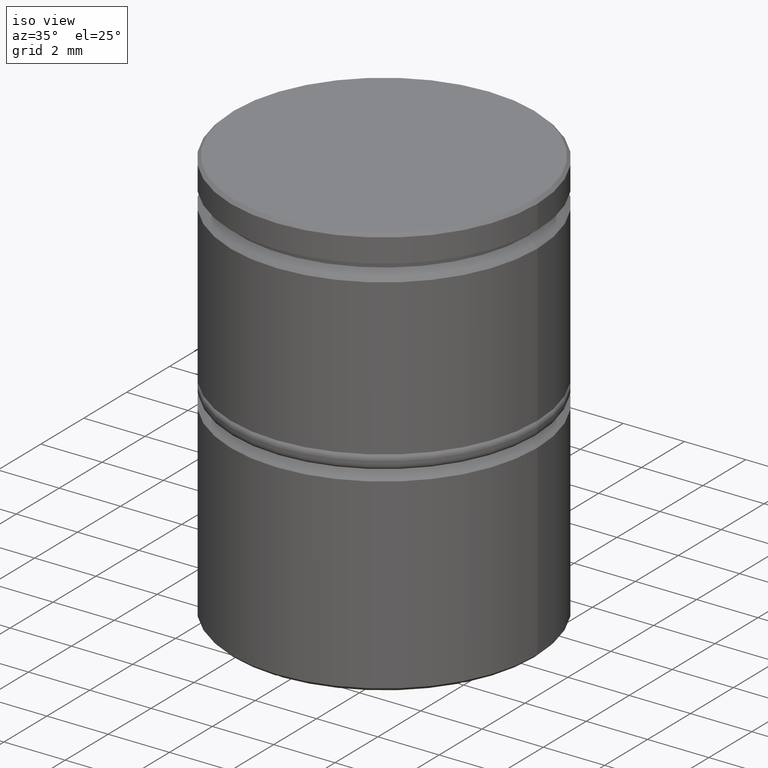
[diagram: clean part render]
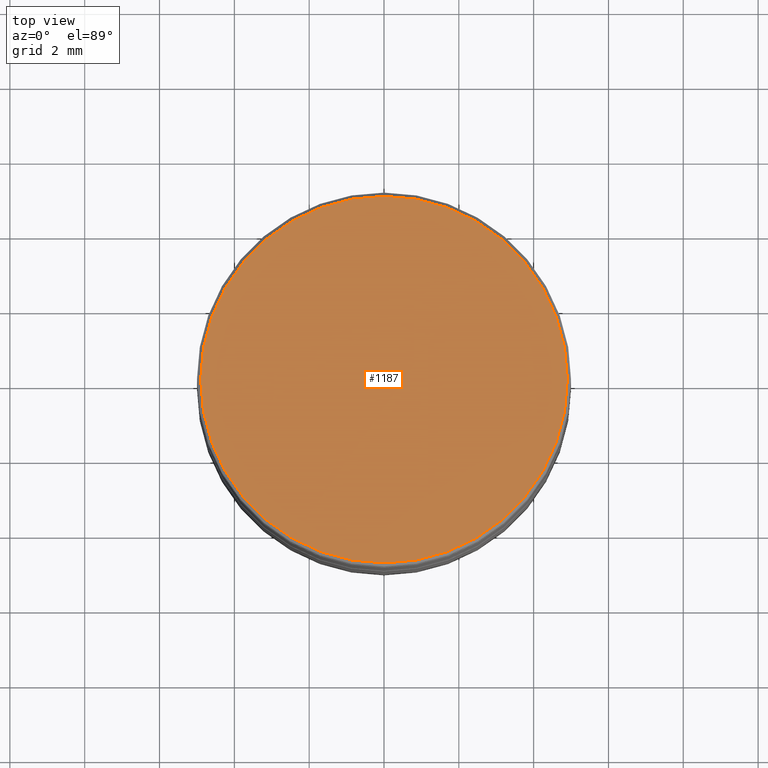
[diagram: tour spotlight — one face highlighted and labeled with its STEP entity id]
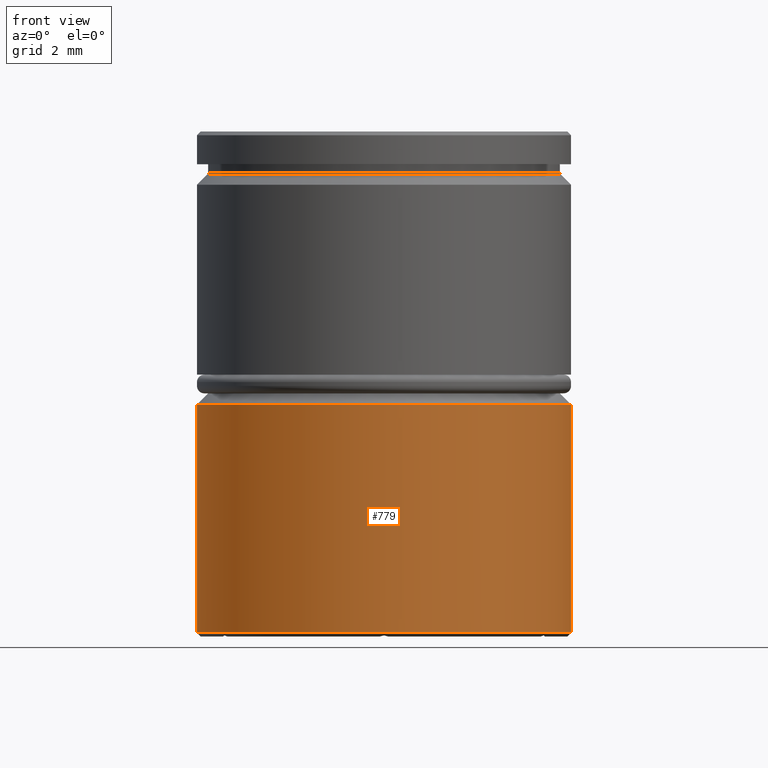
[diagram: tour spotlight — one face highlighted and labeled with its STEP entity id]
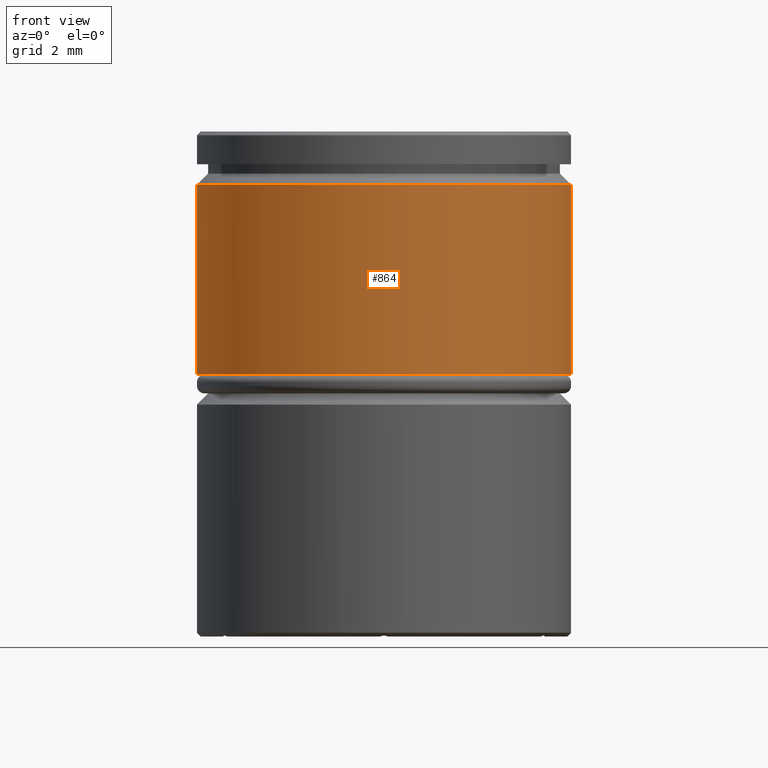
[diagram: tour spotlight — one face highlighted and labeled with its STEP entity id]
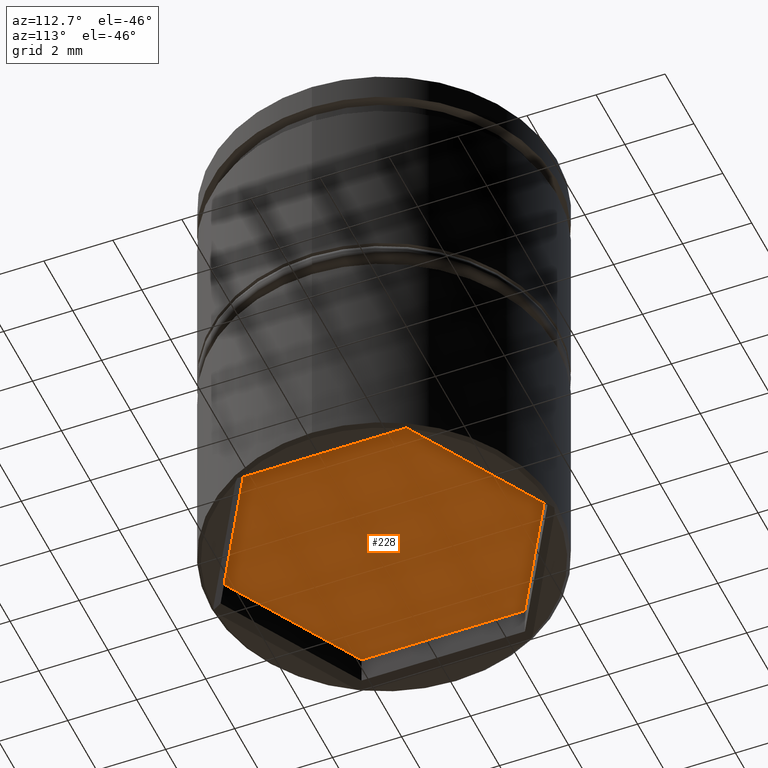
[diagram: tour spotlight — one face highlighted and labeled with its STEP entity id]
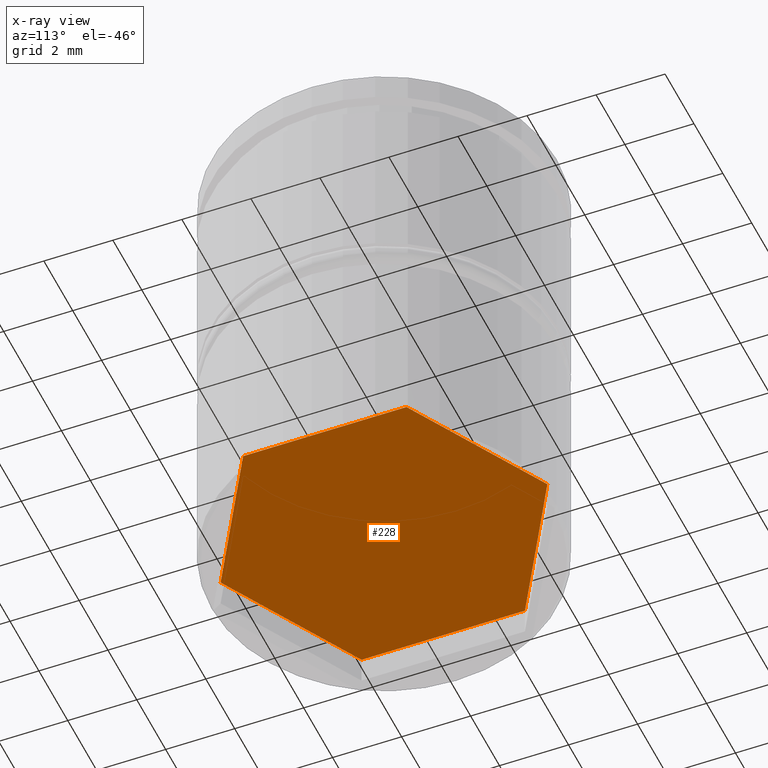
[diagram: x-ray of the same camera — body ghosted, this tour face saturated]
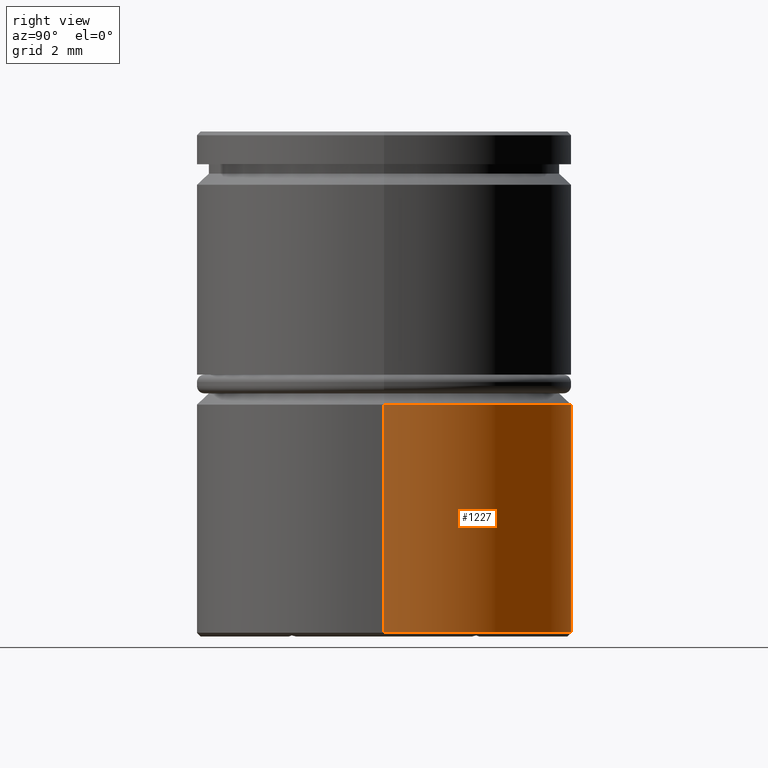
[diagram: tour spotlight — one face highlighted and labeled with its STEP entity id]
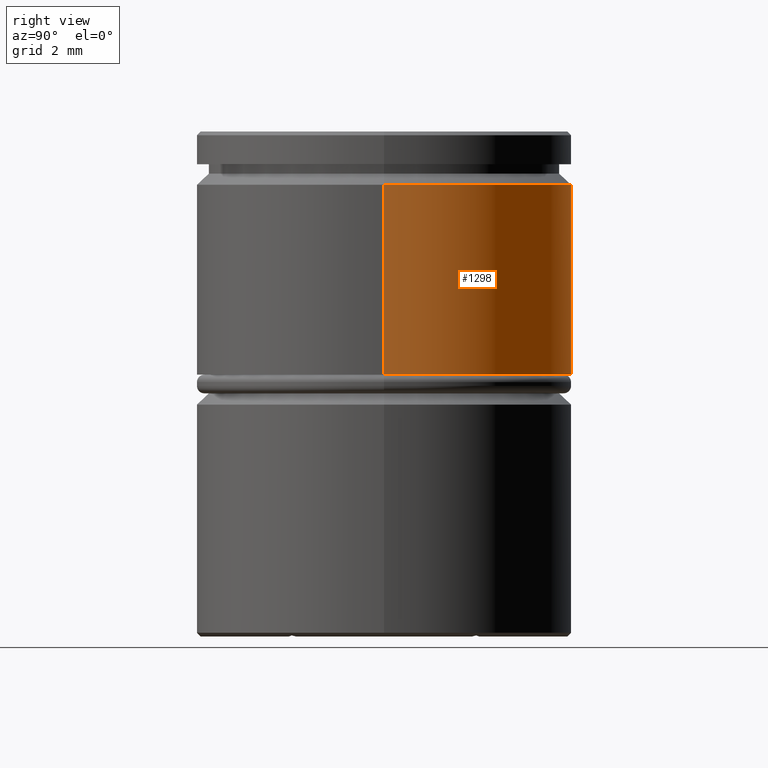
[diagram: tour spotlight — one face highlighted and labeled with its STEP entity id]
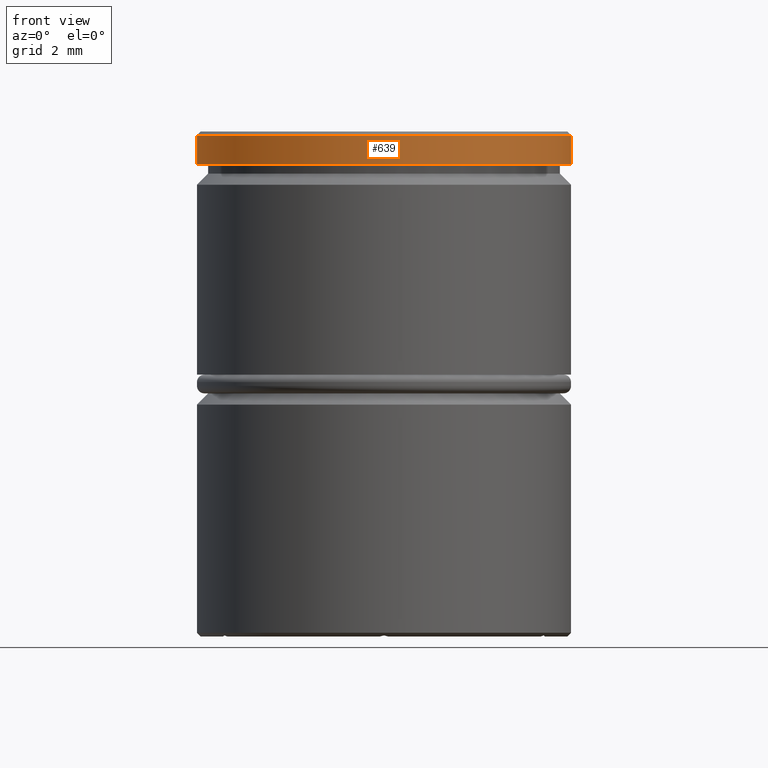
[diagram: tour spotlight — one face highlighted and labeled with its STEP entity id]
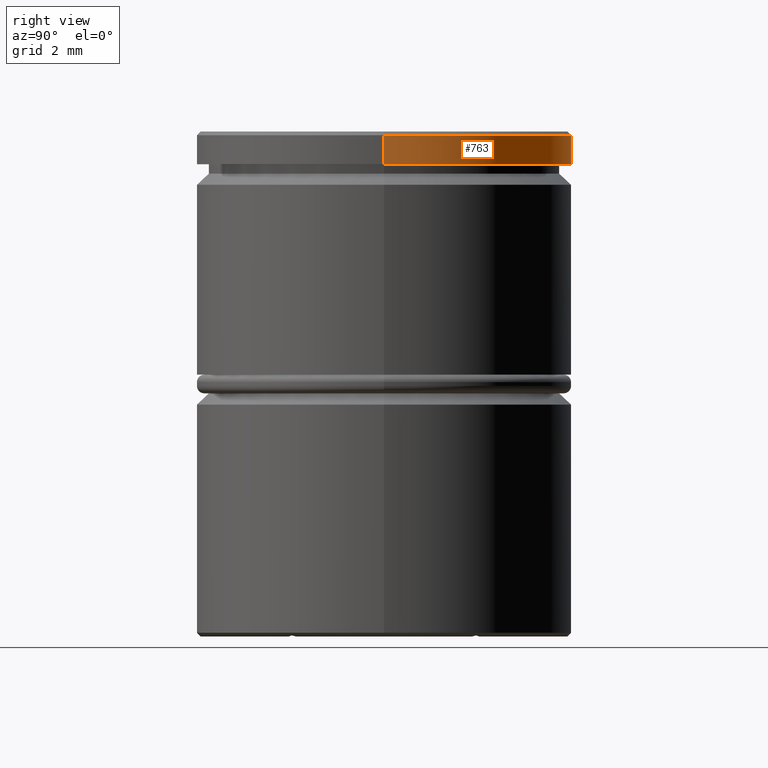
[diagram: tour spotlight — one face highlighted and labeled with its STEP entity id]
A machine part: a face-by-face anatomy tour. The part has 48 B-rep faces; the first image is the clean iso view, then the 8 largest visible faces are spotlighted one at a time (largest first), each with its STEP entity span.

Face 1 — top view, entity #1187. In plain terms, the highlighted planar face has unit normal (0, -0, 1).
Definition (entity closure, byte-faithful):
#43 = EDGE_CURVE ( 'NONE', #96, #1258, #192, .T. ) ;
#80 = DIRECTION ( 'NONE',  ( 1.000000000000000000, 0.000000000000000000, 0.000000000000000000 ) ) ;
#96 = VERTEX_POINT ( 'NONE', #229 ) ;
#174 = DIRECTION ( 'NONE',  ( -0.000000000000000000, -0.000000000000000000, 1.000000000000000000 ) ) ;
#192 = CIRCLE ( 'NONE', #1259, 4.900000000000001243 ) ;
#197 = DIRECTION ( 'NONE',  ( 0.000000000000000000, -0.000000000000000000, 1.000000000000000000 ) ) ;
#229 = CARTESIAN_POINT ( 'NONE',  ( -4.900000000000001243, 0.000000000000000000, 0.000000000000000000 ) ) ;
#256 = AXIS2_PLACEMENT_3D ( 'NONE', #1348, #1139, #1121 ) ;
#290 = CARTESIAN_POINT ( 'NONE',  ( 0.000000000000000000, 0.000000000000000000, 0.000000000000000000 ) ) ;
#294 = EDGE_CURVE ( 'NONE', #1258, #96, #855, .T. ) ;
#297 = PLANE ( 'NONE',  #555 ) ;
#455 = EDGE_LOOP ( 'NONE', ( #1013, #676 ) ) ;
#555 = AXIS2_PLACEMENT_3D ( 'NONE', #1152, #197, #627 ) ;
#627 = DIRECTION ( 'NONE',  ( 1.000000000000000000, 0.000000000000000000, 0.000000000000000000 ) ) ;
#676 = ORIENTED_EDGE ( 'NONE', *, *, #294, .T. ) ;
#833 = CARTESIAN_POINT ( 'NONE',  ( 4.900000000000001243, 6.062001655779399497E-16, 0.000000000000000000 ) ) ;
#855 = CIRCLE ( 'NONE', #256, 4.900000000000001243 ) ;
#1013 = ORIENTED_EDGE ( 'NONE', *, *, #43, .T. ) ;
#1121 = DIRECTION ( 'NONE',  ( 1.000000000000000000, 0.000000000000000000, 0.000000000000000000 ) ) ;
#1139 = DIRECTION ( 'NONE',  ( -0.000000000000000000, -0.000000000000000000, 1.000000000000000000 ) ) ;
#1152 = CARTESIAN_POINT ( 'NONE',  ( 0.000000000000000000, 0.000000000000000000, 0.000000000000000000 ) ) ;
#1187 = ADVANCED_FACE ( 'NONE', ( #1254 ), #297, .T. ) ;
#1254 = FACE_OUTER_BOUND ( 'NONE', #455, .T. ) ;
#1258 = VERTEX_POINT ( 'NONE', #833 ) ;
#1259 = AXIS2_PLACEMENT_3D ( 'NONE', #290, #174, #80 ) ;
#1348 = CARTESIAN_POINT ( 'NONE',  ( 0.000000000000000000, 0.000000000000000000, 0.000000000000000000 ) ) ;

Face 2 — front view, entity #779. In plain terms, the highlighted cylindrical surface (partial cylindrical patch) has radius 5 mm, axis along (-0, -0, 1).
Definition (entity closure, byte-faithful):
#5 = ORIENTED_EDGE ( 'NONE', *, *, #1174, .T. ) ;
#29 = CARTESIAN_POINT ( 'NONE',  ( 5.000000000000000000, 0.000000000000000000, -7.299999999999996270 ) ) ;
#108 = CARTESIAN_POINT ( 'NONE',  ( 0.000000000000000000, 0.000000000000000000, -7.299999999999996270 ) ) ;
#147 = CARTESIAN_POINT ( 'NONE',  ( 5.000000000000000000, 0.000000000000000000, -13.40000000000000213 ) ) ;
#178 = CYLINDRICAL_SURFACE ( 'NONE', #1155, 5.000000000000000000 ) ;
#260 = VECTOR ( 'NONE', #1073, 1000.000000000000000 ) ;
#325 = VECTOR ( 'NONE', #1353, 1000.000000000000000 ) ;
#341 = ORIENTED_EDGE ( 'NONE', *, *, #544, .T. ) ;
#369 = CIRCLE ( 'NONE', #1283, 5.000000000000000000 ) ;
#421 = AXIS2_PLACEMENT_3D ( 'NONE', #721, #1124, #514 ) ;
#487 = CIRCLE ( 'NONE', #421, 5.000000000000000000 ) ;
#498 = DIRECTION ( 'NONE',  ( -0.000000000000000000, -0.000000000000000000, 1.000000000000000000 ) ) ;
#514 = DIRECTION ( 'NONE',  ( -1.000000000000000000, 0.000000000000000000, 0.000000000000000000 ) ) ;
#535 = DIRECTION ( 'NONE',  ( 0.000000000000000000, 0.000000000000000000, -1.000000000000000000 ) ) ;
#544 = EDGE_CURVE ( 'NONE', #968, #705, #369, .T. ) ;
#577 = EDGE_LOOP ( 'NONE', ( #957, #5, #1300, #341 ) ) ;
#590 = CARTESIAN_POINT ( 'NONE',  ( -5.000000000000000000, 6.123233995736766282E-16, 0.000000000000000000 ) ) ;
#601 = CARTESIAN_POINT ( 'NONE',  ( -5.000000000000000000, 6.123233995736766282E-16, -7.299999999999996270 ) ) ;
#610 = CARTESIAN_POINT ( 'NONE',  ( 0.000000000000000000, 0.000000000000000000, 0.000000000000000000 ) ) ;
#705 = VERTEX_POINT ( 'NONE', #601 ) ;
#721 = CARTESIAN_POINT ( 'NONE',  ( 0.000000000000000000, 0.000000000000000000, -13.40000000000000213 ) ) ;
#752 = VERTEX_POINT ( 'NONE', #147 ) ;
#760 = LINE ( 'NONE', #1058, #260 ) ;
#779 = ADVANCED_FACE ( 'NONE', ( #1113 ), #178, .T. ) ;
#801 = EDGE_CURVE ( 'NONE', #752, #968, #760, .T. ) ;
#922 = DIRECTION ( 'NONE',  ( 1.000000000000000000, 0.000000000000000000, 0.000000000000000000 ) ) ;
#957 = ORIENTED_EDGE ( 'NONE', *, *, #1061, .F. ) ;
#958 = DIRECTION ( 'NONE',  ( 1.000000000000000000, 0.000000000000000000, 0.000000000000000000 ) ) ;
#968 = VERTEX_POINT ( 'NONE', #29 ) ;
#983 = CARTESIAN_POINT ( 'NONE',  ( -5.000000000000000000, 6.123233995736766282E-16, -13.40000000000000213 ) ) ;
#1050 = VERTEX_POINT ( 'NONE', #983 ) ;
#1058 = CARTESIAN_POINT ( 'NONE',  ( 5.000000000000000000, 0.000000000000000000, 0.000000000000000000 ) ) ;
#1061 = EDGE_CURVE ( 'NONE', #1050, #705, #1224, .T. ) ;
#1073 = DIRECTION ( 'NONE',  ( -0.000000000000000000, -0.000000000000000000, 1.000000000000000000 ) ) ;
#1113 = FACE_OUTER_BOUND ( 'NONE', #577, .T. ) ;
#1124 = DIRECTION ( 'NONE',  ( -0.000000000000000000, -0.000000000000000000, 1.000000000000000000 ) ) ;
#1155 = AXIS2_PLACEMENT_3D ( 'NONE', #610, #498, #922 ) ;
#1174 = EDGE_CURVE ( 'NONE', #1050, #752, #487, .T. ) ;
#1224 = LINE ( 'NONE', #590, #325 ) ;
#1283 = AXIS2_PLACEMENT_3D ( 'NONE', #108, #535, #958 ) ;
#1300 = ORIENTED_EDGE ( 'NONE', *, *, #801, .T. ) ;
#1353 = DIRECTION ( 'NONE',  ( -0.000000000000000000, -0.000000000000000000, 1.000000000000000000 ) ) ;

Face 3 — front view, entity #864. In plain terms, the highlighted cylindrical surface (partial cylindrical patch) has radius 5 mm, axis along (-0, -0, 1).
Definition (entity closure, byte-faithful):
#18 = FACE_OUTER_BOUND ( 'NONE', #621, .T. ) ;
#84 = AXIS2_PLACEMENT_3D ( 'NONE', #1051, #450, #967 ) ;
#138 = VERTEX_POINT ( 'NONE', #973 ) ;
#158 = CARTESIAN_POINT ( 'NONE',  ( 0.000000000000000000, 0.000000000000000000, -6.499999999999999112 ) ) ;
#171 = CARTESIAN_POINT ( 'NONE',  ( 5.000000000000000000, 0.000000000000000000, -6.499999999999999112 ) ) ;
#237 = CARTESIAN_POINT ( 'NONE',  ( -5.000000000000000000, 6.123233995736766282E-16, 0.000000000000000000 ) ) ;
#291 = CARTESIAN_POINT ( 'NONE',  ( 5.000000000000000000, 0.000000000000000000, 0.000000000000000000 ) ) ;
#298 = VERTEX_POINT ( 'NONE', #171 ) ;
#302 = CIRCLE ( 'NONE', #1060, 5.000000000000000000 ) ;
#349 = CARTESIAN_POINT ( 'NONE',  ( 0.000000000000000000, 0.000000000000000000, -1.425000000000000933 ) ) ;
#353 = EDGE_CURVE ( 'NONE', #1097, #298, #302, .T. ) ;
#363 = DIRECTION ( 'NONE',  ( -0.000000000000000000, -0.000000000000000000, 1.000000000000000000 ) ) ;
#367 = ORIENTED_EDGE ( 'NONE', *, *, #1114, .T. ) ;
#381 = DIRECTION ( 'NONE',  ( 1.000000000000000000, 0.000000000000000000, 0.000000000000000000 ) ) ;
#446 = DIRECTION ( 'NONE',  ( 1.000000000000000000, 0.000000000000000000, 0.000000000000000000 ) ) ;
#450 = DIRECTION ( 'NONE',  ( -0.000000000000000000, -0.000000000000000000, 1.000000000000000000 ) ) ;
#483 = AXIS2_PLACEMENT_3D ( 'NONE', #349, #1084, #446 ) ;
#496 = LINE ( 'NONE', #291, #532 ) ;
#532 = VECTOR ( 'NONE', #905, 1000.000000000000000 ) ;
#607 = CARTESIAN_POINT ( 'NONE',  ( -5.000000000000000000, 6.123233995736766282E-16, -1.425000000000000933 ) ) ;
#621 = EDGE_LOOP ( 'NONE', ( #894, #1302, #367, #1208 ) ) ;
#638 = EDGE_CURVE ( 'NONE', #138, #1091, #1086, .T. ) ;
#863 = CYLINDRICAL_SURFACE ( 'NONE', #84, 5.000000000000000000 ) ;
#864 = ADVANCED_FACE ( 'NONE', ( #18 ), #863, .T. ) ;
#894 = ORIENTED_EDGE ( 'NONE', *, *, #966, .F. ) ;
#905 = DIRECTION ( 'NONE',  ( -0.000000000000000000, -0.000000000000000000, 1.000000000000000000 ) ) ;
#966 = EDGE_CURVE ( 'NONE', #1097, #1091, #1101, .T. ) ;
#967 = DIRECTION ( 'NONE',  ( 1.000000000000000000, 0.000000000000000000, 0.000000000000000000 ) ) ;
#973 = CARTESIAN_POINT ( 'NONE',  ( 5.000000000000000000, 0.000000000000000000, -1.425000000000000933 ) ) ;
#1051 = CARTESIAN_POINT ( 'NONE',  ( 0.000000000000000000, 0.000000000000000000, 0.000000000000000000 ) ) ;
#1060 = AXIS2_PLACEMENT_3D ( 'NONE', #158, #363, #381 ) ;
#1084 = DIRECTION ( 'NONE',  ( 0.000000000000000000, 0.000000000000000000, -1.000000000000000000 ) ) ;
#1086 = CIRCLE ( 'NONE', #483, 5.000000000000000000 ) ;
#1091 = VERTEX_POINT ( 'NONE', #607 ) ;
#1095 = DIRECTION ( 'NONE',  ( -0.000000000000000000, -0.000000000000000000, 1.000000000000000000 ) ) ;
#1097 = VERTEX_POINT ( 'NONE', #1231 ) ;
#1101 = LINE ( 'NONE', #237, #1370 ) ;
#1114 = EDGE_CURVE ( 'NONE', #298, #138, #496, .T. ) ;
#1208 = ORIENTED_EDGE ( 'NONE', *, *, #638, .T. ) ;
#1231 = CARTESIAN_POINT ( 'NONE',  ( -5.000000000000000000, 6.123233995736766282E-16, -6.499999999999999112 ) ) ;
#1302 = ORIENTED_EDGE ( 'NONE', *, *, #353, .T. ) ;
#1370 = VECTOR ( 'NONE', #1095, 1000.000000000000000 ) ;

Face 4 — auxiliary view, entity #228. An x-ray twin of the same camera follows (body ghosted, this face saturated) — the face is partly hidden behind the body. In plain terms, the highlighted planar face has unit normal (0, 0, -1).
Definition (entity closure, byte-faithful):
#31 = AXIS2_PLACEMENT_3D ( 'NONE', #479, #901, #1115 ) ;
#53 = VERTEX_POINT ( 'NONE', #1257 ) ;
#85 = VECTOR ( 'NONE', #925, 1000.000000000000000 ) ;
#93 = DIRECTION ( 'NONE',  ( 0.000000000000000000, -1.000000000000000000, 0.000000000000000000 ) ) ;
#129 = DIRECTION ( 'NONE',  ( -0.8660254037844384856, 0.5000000000000002220, 0.000000000000000000 ) ) ;
#130 = VERTEX_POINT ( 'NONE', #838 ) ;
#180 = CARTESIAN_POINT ( 'NONE',  ( 0.000000000000000000, 4.734272207354934814, -12.50000000000000000 ) ) ;
#183 = ORIENTED_EDGE ( 'NONE', *, *, #403, .T. ) ;
#188 = CARTESIAN_POINT ( 'NONE',  ( 4.100000000000003197, -2.367136103677467407, -12.50000000000000000 ) ) ;
#190 = EDGE_CURVE ( 'NONE', #1006, #564, #234, .T. ) ;
#228 = ADVANCED_FACE ( 'NONE', ( #529 ), #802, .T. ) ;
#234 = LINE ( 'NONE', #537, #528 ) ;
#374 = CARTESIAN_POINT ( 'NONE',  ( 4.100000000000003197, 2.367136103677466963, -12.50000000000000000 ) ) ;
#393 = ORIENTED_EDGE ( 'NONE', *, *, #1363, .T. ) ;
#403 = EDGE_CURVE ( 'NONE', #53, #130, #1247, .T. ) ;
#413 = EDGE_CURVE ( 'NONE', #564, #955, #726, .T. ) ;
#479 = CARTESIAN_POINT ( 'NONE',  ( 0.000000000000000000, 0.000000000000000000, -12.50000000000000000 ) ) ;
#502 = LINE ( 'NONE', #180, #85 ) ;
#505 = DIRECTION ( 'NONE',  ( -0.8660254037844387076, -0.4999999999999999445, 0.000000000000000000 ) ) ;
#528 = VECTOR ( 'NONE', #129, 1000.000000000000227 ) ;
#529 = FACE_OUTER_BOUND ( 'NONE', #539, .T. ) ;
#537 = CARTESIAN_POINT ( 'NONE',  ( -8.646952822150503169E-16, -4.734272207354934814, -12.50000000000000000 ) ) ;
#539 = EDGE_LOOP ( 'NONE', ( #1326, #393, #183, #1183, #841, #1202 ) ) ;
#551 = VECTOR ( 'NONE', #93, 1000.000000000000000 ) ;
#564 = VERTEX_POINT ( 'NONE', #1190 ) ;
#576 = VECTOR ( 'NONE', #734, 1000.000000000000000 ) ;
#651 = CARTESIAN_POINT ( 'NONE',  ( 0.000000000000000000, 4.734272207354934814, -12.50000000000000000 ) ) ;
#669 = CARTESIAN_POINT ( 'NONE',  ( -4.100000000000003197, 2.367136103677469183, -12.50000000000000000 ) ) ;
#726 = LINE ( 'NONE', #739, #576 ) ;
#734 = DIRECTION ( 'NONE',  ( -1.832090974069704843E-16, 1.000000000000000000, 0.000000000000000000 ) ) ;
#739 = CARTESIAN_POINT ( 'NONE',  ( -4.100000000000002309, -2.367136103677466963, -12.50000000000000000 ) ) ;
#790 = DIRECTION ( 'NONE',  ( 0.8660254037844387076, 0.4999999999999997224, 0.000000000000000000 ) ) ;
#802 = PLANE ( 'NONE',  #31 ) ;
#838 = CARTESIAN_POINT ( 'NONE',  ( 4.100000000000003197, -2.367136103677467407, -12.50000000000000000 ) ) ;
#841 = ORIENTED_EDGE ( 'NONE', *, *, #190, .T. ) ;
#898 = LINE ( 'NONE', #1317, #996 ) ;
#901 = DIRECTION ( 'NONE',  ( 0.000000000000000000, 0.000000000000000000, -1.000000000000000000 ) ) ;
#925 = DIRECTION ( 'NONE',  ( 0.8660254037844385966, -0.5000000000000001110, 0.000000000000000000 ) ) ;
#955 = VERTEX_POINT ( 'NONE', #669 ) ;
#996 = VECTOR ( 'NONE', #790, 1000.000000000000114 ) ;
#1006 = VERTEX_POINT ( 'NONE', #1301 ) ;
#1019 = VECTOR ( 'NONE', #505, 1000.000000000000000 ) ;
#1052 = EDGE_CURVE ( 'NONE', #955, #1232, #898, .T. ) ;
#1115 = DIRECTION ( 'NONE',  ( -1.000000000000000000, 0.000000000000000000, -0.000000000000000000 ) ) ;
#1142 = LINE ( 'NONE', #188, #1019 ) ;
#1143 = EDGE_CURVE ( 'NONE', #130, #1006, #1142, .T. ) ;
#1183 = ORIENTED_EDGE ( 'NONE', *, *, #1143, .T. ) ;
#1190 = CARTESIAN_POINT ( 'NONE',  ( -4.100000000000002309, -2.367136103677466963, -12.50000000000000000 ) ) ;
#1202 = ORIENTED_EDGE ( 'NONE', *, *, #413, .T. ) ;
#1232 = VERTEX_POINT ( 'NONE', #651 ) ;
#1247 = LINE ( 'NONE', #374, #551 ) ;
#1257 = CARTESIAN_POINT ( 'NONE',  ( 4.100000000000003197, 2.367136103677466963, -12.50000000000000000 ) ) ;
#1301 = CARTESIAN_POINT ( 'NONE',  ( -8.646952822150503169E-16, -4.734272207354934814, -12.50000000000000000 ) ) ;
#1317 = CARTESIAN_POINT ( 'NONE',  ( -4.100000000000003197, 2.367136103677469183, -12.50000000000000000 ) ) ;
#1326 = ORIENTED_EDGE ( 'NONE', *, *, #1052, .T. ) ;
#1363 = EDGE_CURVE ( 'NONE', #1232, #53, #502, .T. ) ;

Face 5 — right view, entity #1227. In plain terms, the highlighted cylindrical surface (partial cylindrical patch) has radius 5 mm, axis along (-0, -0, 1).
Definition (entity closure, byte-faithful):
#29 = CARTESIAN_POINT ( 'NONE',  ( 5.000000000000000000, 0.000000000000000000, -7.299999999999996270 ) ) ;
#109 = CARTESIAN_POINT ( 'NONE',  ( 0.000000000000000000, 0.000000000000000000, -7.299999999999996270 ) ) ;
#132 = EDGE_CURVE ( 'NONE', #705, #968, #415, .T. ) ;
#140 = DIRECTION ( 'NONE',  ( -0.000000000000000000, -0.000000000000000000, 1.000000000000000000 ) ) ;
#147 = CARTESIAN_POINT ( 'NONE',  ( 5.000000000000000000, 0.000000000000000000, -13.40000000000000213 ) ) ;
#189 = ORIENTED_EDGE ( 'NONE', *, *, #1061, .T. ) ;
#223 = CYLINDRICAL_SURFACE ( 'NONE', #997, 5.000000000000000000 ) ;
#260 = VECTOR ( 'NONE', #1073, 1000.000000000000000 ) ;
#321 = DIRECTION ( 'NONE',  ( -0.000000000000000000, -0.000000000000000000, 1.000000000000000000 ) ) ;
#325 = VECTOR ( 'NONE', #1353, 1000.000000000000000 ) ;
#412 = EDGE_LOOP ( 'NONE', ( #671, #189, #1107, #1136 ) ) ;
#415 = CIRCLE ( 'NONE', #1282, 5.000000000000000000 ) ;
#530 = AXIS2_PLACEMENT_3D ( 'NONE', #1098, #140, #570 ) ;
#570 = DIRECTION ( 'NONE',  ( -1.000000000000000000, 0.000000000000000000, 0.000000000000000000 ) ) ;
#590 = CARTESIAN_POINT ( 'NONE',  ( -5.000000000000000000, 6.123233995736766282E-16, 0.000000000000000000 ) ) ;
#601 = CARTESIAN_POINT ( 'NONE',  ( -5.000000000000000000, 6.123233995736766282E-16, -7.299999999999996270 ) ) ;
#649 = EDGE_CURVE ( 'NONE', #752, #1050, #1261, .T. ) ;
#671 = ORIENTED_EDGE ( 'NONE', *, *, #649, .T. ) ;
#705 = VERTEX_POINT ( 'NONE', #601 ) ;
#752 = VERTEX_POINT ( 'NONE', #147 ) ;
#760 = LINE ( 'NONE', #1058, #260 ) ;
#801 = EDGE_CURVE ( 'NONE', #752, #968, #760, .T. ) ;
#860 = CARTESIAN_POINT ( 'NONE',  ( 0.000000000000000000, 0.000000000000000000, 0.000000000000000000 ) ) ;
#968 = VERTEX_POINT ( 'NONE', #29 ) ;
#983 = CARTESIAN_POINT ( 'NONE',  ( -5.000000000000000000, 6.123233995736766282E-16, -13.40000000000000213 ) ) ;
#997 = AXIS2_PLACEMENT_3D ( 'NONE', #860, #321, #1268 ) ;
#1050 = VERTEX_POINT ( 'NONE', #983 ) ;
#1058 = CARTESIAN_POINT ( 'NONE',  ( 5.000000000000000000, 0.000000000000000000, 0.000000000000000000 ) ) ;
#1061 = EDGE_CURVE ( 'NONE', #1050, #705, #1224, .T. ) ;
#1073 = DIRECTION ( 'NONE',  ( -0.000000000000000000, -0.000000000000000000, 1.000000000000000000 ) ) ;
#1098 = CARTESIAN_POINT ( 'NONE',  ( 0.000000000000000000, 0.000000000000000000, -13.40000000000000213 ) ) ;
#1107 = ORIENTED_EDGE ( 'NONE', *, *, #132, .T. ) ;
#1136 = ORIENTED_EDGE ( 'NONE', *, *, #801, .F. ) ;
#1166 = FACE_OUTER_BOUND ( 'NONE', #412, .T. ) ;
#1179 = DIRECTION ( 'NONE',  ( 1.000000000000000000, 0.000000000000000000, 0.000000000000000000 ) ) ;
#1224 = LINE ( 'NONE', #590, #325 ) ;
#1227 = ADVANCED_FACE ( 'NONE', ( #1166 ), #223, .T. ) ;
#1261 = CIRCLE ( 'NONE', #530, 5.000000000000000000 ) ;
#1268 = DIRECTION ( 'NONE',  ( 1.000000000000000000, 0.000000000000000000, 0.000000000000000000 ) ) ;
#1278 = DIRECTION ( 'NONE',  ( 0.000000000000000000, 0.000000000000000000, -1.000000000000000000 ) ) ;
#1282 = AXIS2_PLACEMENT_3D ( 'NONE', #109, #1278, #1179 ) ;
#1353 = DIRECTION ( 'NONE',  ( -0.000000000000000000, -0.000000000000000000, 1.000000000000000000 ) ) ;

Face 6 — right view, entity #1298. In plain terms, the highlighted cylindrical surface (partial cylindrical patch) has radius 5 mm, axis along (-0, -0, 1).
Definition (entity closure, byte-faithful):
#21 = DIRECTION ( 'NONE',  ( 0.000000000000000000, 0.000000000000000000, -1.000000000000000000 ) ) ;
#59 = CIRCLE ( 'NONE', #885, 5.000000000000000000 ) ;
#67 = ORIENTED_EDGE ( 'NONE', *, *, #853, .T. ) ;
#138 = VERTEX_POINT ( 'NONE', #973 ) ;
#171 = CARTESIAN_POINT ( 'NONE',  ( 5.000000000000000000, 0.000000000000000000, -6.499999999999999112 ) ) ;
#237 = CARTESIAN_POINT ( 'NONE',  ( -5.000000000000000000, 6.123233995736766282E-16, 0.000000000000000000 ) ) ;
#247 = ORIENTED_EDGE ( 'NONE', *, *, #966, .T. ) ;
#258 = AXIS2_PLACEMENT_3D ( 'NONE', #1292, #21, #867 ) ;
#269 = CYLINDRICAL_SURFACE ( 'NONE', #792, 5.000000000000000000 ) ;
#291 = CARTESIAN_POINT ( 'NONE',  ( 5.000000000000000000, 0.000000000000000000, 0.000000000000000000 ) ) ;
#298 = VERTEX_POINT ( 'NONE', #171 ) ;
#317 = DIRECTION ( 'NONE',  ( -0.000000000000000000, -0.000000000000000000, 1.000000000000000000 ) ) ;
#496 = LINE ( 'NONE', #291, #532 ) ;
#532 = VECTOR ( 'NONE', #905, 1000.000000000000000 ) ;
#546 = DIRECTION ( 'NONE',  ( 1.000000000000000000, 0.000000000000000000, 0.000000000000000000 ) ) ;
#595 = CARTESIAN_POINT ( 'NONE',  ( 0.000000000000000000, 0.000000000000000000, 0.000000000000000000 ) ) ;
#597 = EDGE_CURVE ( 'NONE', #1091, #138, #1176, .T. ) ;
#607 = CARTESIAN_POINT ( 'NONE',  ( -5.000000000000000000, 6.123233995736766282E-16, -1.425000000000000933 ) ) ;
#617 = FACE_OUTER_BOUND ( 'NONE', #741, .T. ) ;
#733 = CARTESIAN_POINT ( 'NONE',  ( 0.000000000000000000, 0.000000000000000000, -6.499999999999999112 ) ) ;
#741 = EDGE_LOOP ( 'NONE', ( #67, #247, #1057, #988 ) ) ;
#792 = AXIS2_PLACEMENT_3D ( 'NONE', #595, #1235, #1130 ) ;
#853 = EDGE_CURVE ( 'NONE', #298, #1097, #59, .T. ) ;
#867 = DIRECTION ( 'NONE',  ( 1.000000000000000000, 0.000000000000000000, 0.000000000000000000 ) ) ;
#885 = AXIS2_PLACEMENT_3D ( 'NONE', #733, #317, #546 ) ;
#905 = DIRECTION ( 'NONE',  ( -0.000000000000000000, -0.000000000000000000, 1.000000000000000000 ) ) ;
#966 = EDGE_CURVE ( 'NONE', #1097, #1091, #1101, .T. ) ;
#973 = CARTESIAN_POINT ( 'NONE',  ( 5.000000000000000000, 0.000000000000000000, -1.425000000000000933 ) ) ;
#988 = ORIENTED_EDGE ( 'NONE', *, *, #1114, .F. ) ;
#1057 = ORIENTED_EDGE ( 'NONE', *, *, #597, .T. ) ;
#1091 = VERTEX_POINT ( 'NONE', #607 ) ;
#1095 = DIRECTION ( 'NONE',  ( -0.000000000000000000, -0.000000000000000000, 1.000000000000000000 ) ) ;
#1097 = VERTEX_POINT ( 'NONE', #1231 ) ;
#1101 = LINE ( 'NONE', #237, #1370 ) ;
#1114 = EDGE_CURVE ( 'NONE', #298, #138, #496, .T. ) ;
#1130 = DIRECTION ( 'NONE',  ( 1.000000000000000000, 0.000000000000000000, 0.000000000000000000 ) ) ;
#1176 = CIRCLE ( 'NONE', #258, 5.000000000000000000 ) ;
#1231 = CARTESIAN_POINT ( 'NONE',  ( -5.000000000000000000, 6.123233995736766282E-16, -6.499999999999999112 ) ) ;
#1235 = DIRECTION ( 'NONE',  ( -0.000000000000000000, -0.000000000000000000, 1.000000000000000000 ) ) ;
#1292 = CARTESIAN_POINT ( 'NONE',  ( 0.000000000000000000, 0.000000000000000000, -1.425000000000000933 ) ) ;
#1298 = ADVANCED_FACE ( 'NONE', ( #617 ), #269, .T. ) ;
#1370 = VECTOR ( 'NONE', #1095, 1000.000000000000000 ) ;

Face 7 — front view, entity #639. In plain terms, the highlighted cylindrical surface (partial cylindrical patch) has radius 5 mm, axis along (-0, -0, 1).
Definition (entity closure, byte-faithful):
#4 = CARTESIAN_POINT ( 'NONE',  ( 5.000000000000000000, 0.000000000000000000, -0.09999999999999506506 ) ) ;
#92 = VERTEX_POINT ( 'NONE', #4 ) ;
#99 = ORIENTED_EDGE ( 'NONE', *, *, #107, .T. ) ;
#104 = CIRCLE ( 'NONE', #1262, 5.000000000000000000 ) ;
#107 = EDGE_CURVE ( 'NONE', #592, #92, #661, .T. ) ;
#110 = DIRECTION ( 'NONE',  ( 1.000000000000000000, 0.000000000000000000, 0.000000000000000000 ) ) ;
#113 = VERTEX_POINT ( 'NONE', #952 ) ;
#119 = CARTESIAN_POINT ( 'NONE',  ( 5.000000000000000000, 0.000000000000000000, -0.8749999999999998890 ) ) ;
#320 = DIRECTION ( 'NONE',  ( -0.000000000000000000, -0.000000000000000000, 1.000000000000000000 ) ) ;
#437 = CARTESIAN_POINT ( 'NONE',  ( 5.000000000000000000, 0.000000000000000000, 0.000000000000000000 ) ) ;
#491 = ORIENTED_EDGE ( 'NONE', *, *, #1210, .T. ) ;
#542 = FACE_OUTER_BOUND ( 'NONE', #1274, .T. ) ;
#565 = CARTESIAN_POINT ( 'NONE',  ( 0.000000000000000000, 0.000000000000000000, 0.000000000000000000 ) ) ;
#592 = VERTEX_POINT ( 'NONE', #119 ) ;
#600 = AXIS2_PLACEMENT_3D ( 'NONE', #565, #985, #980 ) ;
#639 = ADVANCED_FACE ( 'NONE', ( #542 ), #1207, .T. ) ;
#661 = LINE ( 'NONE', #437, #1059 ) ;
#666 = AXIS2_PLACEMENT_3D ( 'NONE', #850, #1065, #110 ) ;
#678 = LINE ( 'NONE', #800, #837 ) ;
#731 = CARTESIAN_POINT ( 'NONE',  ( -5.000000000000000000, 6.123233995736766282E-16, -0.09999999999999506506 ) ) ;
#744 = EDGE_CURVE ( 'NONE', #113, #1263, #678, .T. ) ;
#780 = ORIENTED_EDGE ( 'NONE', *, *, #744, .F. ) ;
#800 = CARTESIAN_POINT ( 'NONE',  ( -5.000000000000000000, 6.123233995736766282E-16, 0.000000000000000000 ) ) ;
#813 = EDGE_CURVE ( 'NONE', #113, #592, #104, .T. ) ;
#837 = VECTOR ( 'NONE', #1260, 1000.000000000000000 ) ;
#850 = CARTESIAN_POINT ( 'NONE',  ( 0.000000000000000000, 0.000000000000000000, -0.09999999999999506506 ) ) ;
#952 = CARTESIAN_POINT ( 'NONE',  ( -5.000000000000000000, 6.123233995736766282E-16, -0.8749999999999998890 ) ) ;
#980 = DIRECTION ( 'NONE',  ( 1.000000000000000000, 0.000000000000000000, 0.000000000000000000 ) ) ;
#985 = DIRECTION ( 'NONE',  ( -0.000000000000000000, -0.000000000000000000, 1.000000000000000000 ) ) ;
#1059 = VECTOR ( 'NONE', #320, 1000.000000000000000 ) ;
#1065 = DIRECTION ( 'NONE',  ( 0.000000000000000000, 0.000000000000000000, -1.000000000000000000 ) ) ;
#1081 = DIRECTION ( 'NONE',  ( -0.000000000000000000, -0.000000000000000000, 1.000000000000000000 ) ) ;
#1182 = CARTESIAN_POINT ( 'NONE',  ( 0.000000000000000000, 0.000000000000000000, -0.8749999999999998890 ) ) ;
#1188 = DIRECTION ( 'NONE',  ( 1.000000000000000000, 0.000000000000000000, 0.000000000000000000 ) ) ;
#1207 = CYLINDRICAL_SURFACE ( 'NONE', #600, 5.000000000000000000 ) ;
#1210 = EDGE_CURVE ( 'NONE', #92, #1263, #1264, .T. ) ;
#1260 = DIRECTION ( 'NONE',  ( -0.000000000000000000, -0.000000000000000000, 1.000000000000000000 ) ) ;
#1262 = AXIS2_PLACEMENT_3D ( 'NONE', #1182, #1081, #1188 ) ;
#1263 = VERTEX_POINT ( 'NONE', #731 ) ;
#1264 = CIRCLE ( 'NONE', #666, 5.000000000000000000 ) ;
#1274 = EDGE_LOOP ( 'NONE', ( #780, #1347, #99, #491 ) ) ;
#1347 = ORIENTED_EDGE ( 'NONE', *, *, #813, .T. ) ;

Face 8 — right view, entity #763. In plain terms, the highlighted cylindrical surface (partial cylindrical patch) has radius 5 mm, axis along (-0, -0, 1).
Definition (entity closure, byte-faithful):
#4 = CARTESIAN_POINT ( 'NONE',  ( 5.000000000000000000, 0.000000000000000000, -0.09999999999999506506 ) ) ;
#47 = DIRECTION ( 'NONE',  ( -0.000000000000000000, -0.000000000000000000, 1.000000000000000000 ) ) ;
#65 = CARTESIAN_POINT ( 'NONE',  ( 0.000000000000000000, 0.000000000000000000, -0.8749999999999998890 ) ) ;
#92 = VERTEX_POINT ( 'NONE', #4 ) ;
#107 = EDGE_CURVE ( 'NONE', #592, #92, #661, .T. ) ;
#113 = VERTEX_POINT ( 'NONE', #952 ) ;
#119 = CARTESIAN_POINT ( 'NONE',  ( 5.000000000000000000, 0.000000000000000000, -0.8749999999999998890 ) ) ;
#195 = CIRCLE ( 'NONE', #239, 5.000000000000000000 ) ;
#239 = AXIS2_PLACEMENT_3D ( 'NONE', #1046, #942, #1251 ) ;
#275 = DIRECTION ( 'NONE',  ( 1.000000000000000000, 0.000000000000000000, 0.000000000000000000 ) ) ;
#279 = DIRECTION ( 'NONE',  ( 1.000000000000000000, 0.000000000000000000, 0.000000000000000000 ) ) ;
#320 = DIRECTION ( 'NONE',  ( -0.000000000000000000, -0.000000000000000000, 1.000000000000000000 ) ) ;
#334 = EDGE_CURVE ( 'NONE', #592, #113, #750, .T. ) ;
#355 = ORIENTED_EDGE ( 'NONE', *, *, #107, .F. ) ;
#437 = CARTESIAN_POINT ( 'NONE',  ( 5.000000000000000000, 0.000000000000000000, 0.000000000000000000 ) ) ;
#500 = EDGE_CURVE ( 'NONE', #1263, #92, #195, .T. ) ;
#547 = ORIENTED_EDGE ( 'NONE', *, *, #744, .T. ) ;
#592 = VERTEX_POINT ( 'NONE', #119 ) ;
#661 = LINE ( 'NONE', #437, #1059 ) ;
#678 = LINE ( 'NONE', #800, #837 ) ;
#699 = FACE_OUTER_BOUND ( 'NONE', #724, .T. ) ;
#724 = EDGE_LOOP ( 'NONE', ( #1371, #547, #979, #355 ) ) ;
#731 = CARTESIAN_POINT ( 'NONE',  ( -5.000000000000000000, 6.123233995736766282E-16, -0.09999999999999506506 ) ) ;
#744 = EDGE_CURVE ( 'NONE', #113, #1263, #678, .T. ) ;
#750 = CIRCLE ( 'NONE', #994, 5.000000000000000000 ) ;
#763 = ADVANCED_FACE ( 'NONE', ( #699 ), #1239, .T. ) ;
#800 = CARTESIAN_POINT ( 'NONE',  ( -5.000000000000000000, 6.123233995736766282E-16, 0.000000000000000000 ) ) ;
#837 = VECTOR ( 'NONE', #1260, 1000.000000000000000 ) ;
#942 = DIRECTION ( 'NONE',  ( 0.000000000000000000, 0.000000000000000000, -1.000000000000000000 ) ) ;
#952 = CARTESIAN_POINT ( 'NONE',  ( -5.000000000000000000, 6.123233995736766282E-16, -0.8749999999999998890 ) ) ;
#979 = ORIENTED_EDGE ( 'NONE', *, *, #500, .T. ) ;
#994 = AXIS2_PLACEMENT_3D ( 'NONE', #65, #1316, #275 ) ;
#1046 = CARTESIAN_POINT ( 'NONE',  ( 0.000000000000000000, 0.000000000000000000, -0.09999999999999506506 ) ) ;
#1059 = VECTOR ( 'NONE', #320, 1000.000000000000000 ) ;
#1063 = AXIS2_PLACEMENT_3D ( 'NONE', #1138, #47, #279 ) ;
#1138 = CARTESIAN_POINT ( 'NONE',  ( 0.000000000000000000, 0.000000000000000000, 0.000000000000000000 ) ) ;
#1239 = CYLINDRICAL_SURFACE ( 'NONE', #1063, 5.000000000000000000 ) ;
#1251 = DIRECTION ( 'NONE',  ( 1.000000000000000000, 0.000000000000000000, 0.000000000000000000 ) ) ;
#1260 = DIRECTION ( 'NONE',  ( -0.000000000000000000, -0.000000000000000000, 1.000000000000000000 ) ) ;
#1263 = VERTEX_POINT ( 'NONE', #731 ) ;
#1316 = DIRECTION ( 'NONE',  ( -0.000000000000000000, -0.000000000000000000, 1.000000000000000000 ) ) ;
#1371 = ORIENTED_EDGE ( 'NONE', *, *, #334, .T. ) ;